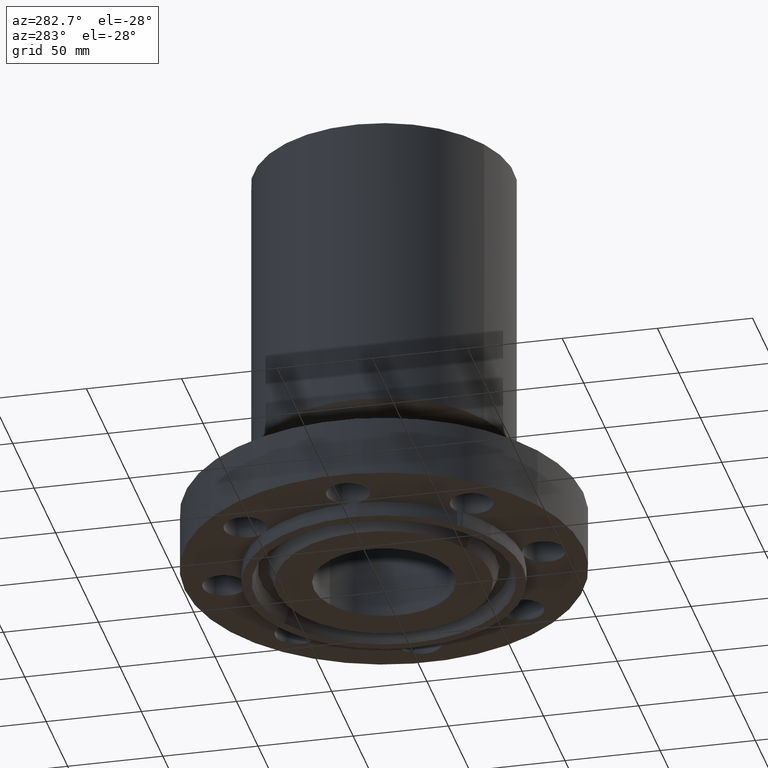
[diagram: clean part render]
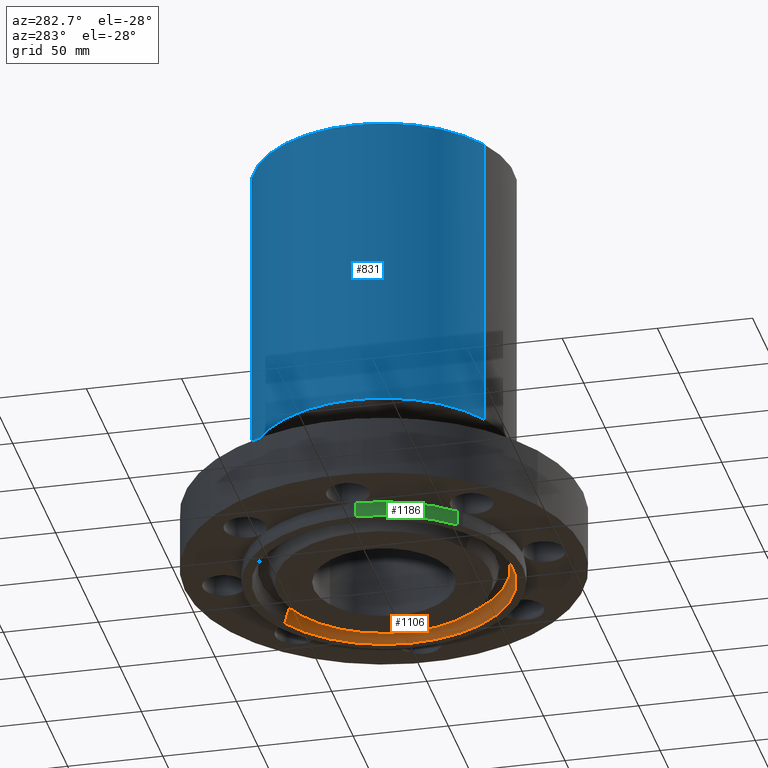
[diagram: same view with three faces highlighted in distinct colors, each labeled with its STEP entity id]
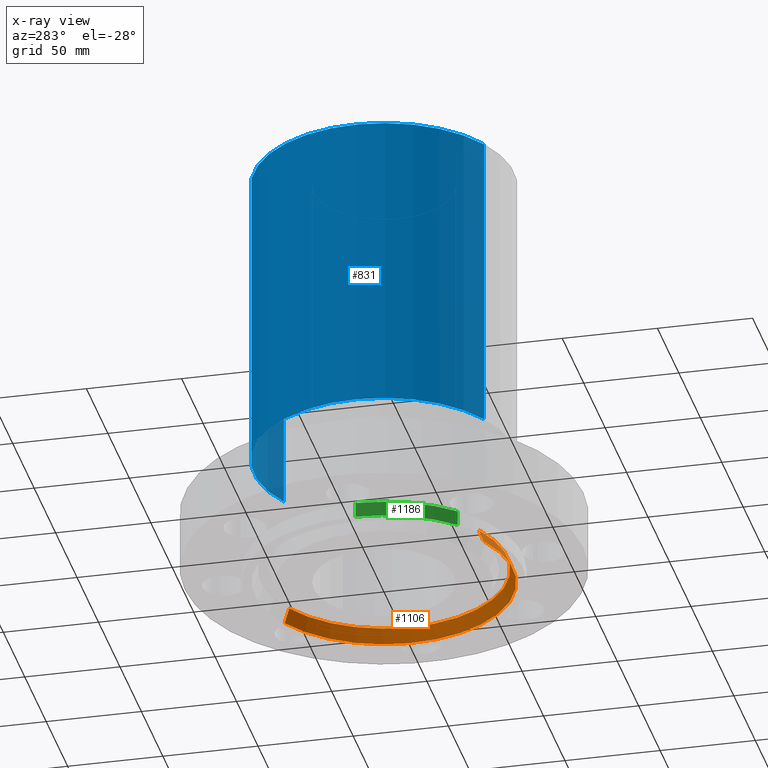
[diagram: x-ray of the same camera — body ghosted, the three highlighted faces saturated]
A machine part, auxiliary view with three faces highlighted in distinct colors.
The next image is the same camera in x-ray (body ghosted, the three faces saturated) — at least one of them is partly hidden behind the body in this view.
Their STEP definitions:

[orange] entity #1106 — the highlighted conical surface has half-angle 23 deg.
#586=AXIS2_PLACEMENT_3D('Circle Axis2P3D',#584,#585,$) ;
#1068=AXIS2_PLACEMENT_3D('Circle Axis2P3D',#1066,#1067,$) ;
#1081=AXIS2_PLACEMENT_3D('Cone Axis2P3D',#1078,#1079,#1080) ;
#584=CARTESIAN_POINT('Axis2P3D Location',(0.,0.,-0.313000000001)) ;
#588=CARTESIAN_POINT('Vertex',(1.28102503916,2.34490060538,-0.313000000001)) ;
#590=CARTESIAN_POINT('Vertex',(-1.28102503916,-2.34490060538,-0.313000000001)) ;
#1044=CARTESIAN_POINT('Vertex',(-1.22117191556,-2.23534019754,-0.0188873350169)) ;
#1051=CARTESIAN_POINT('Vertex',(1.22117191556,2.23534019754,-0.0188873350169)) ;
#1066=CARTESIAN_POINT('Axis2P3D Location',(0.,0.,-0.0188873350169)) ;
#1078=CARTESIAN_POINT('Axis2P3D Location',(0.,0.,-0.0188873350169)) ;
#1083=CARTESIAN_POINT('Line Origine',(-1.25109847736,-2.29012040146,-0.165943667509)) ;
#1088=CARTESIAN_POINT('Line Origine',(1.25109847736,2.29012040146,-0.165943667509)) ;
#585=DIRECTION('Axis2P3D Direction',(0.,0.,-0.0393700787402)) ;
#1067=DIRECTION('Axis2P3D Direction',(0.,0.,-0.0393700787402)) ;
#1079=DIRECTION('Axis2P3D Direction',(0.,0.,-0.0393700787402)) ;
#1080=DIRECTION('Axis2P3D XDirection',(0.0188750212049,0.0345504945626,0.)) ;
#1084=DIRECTION('Vector Direction',(-0.00737505833565,-0.0134999537303,-0.0362403485611)) ;
#1089=DIRECTION('Vector Direction',(0.00737505833565,0.0134999537303,-0.0362403485611)) ;
#1085=VECTOR('Line Direction',#1084,0.0393700787402) ;
#1090=VECTOR('Line Direction',#1089,0.0393700787402) ;
#1101=ORIENTED_EDGE('',*,*,#1070,.F.) ;
#1102=ORIENTED_EDGE('',*,*,#1092,.T.) ;
#1103=ORIENTED_EDGE('',*,*,#592,.T.) ;
#1104=ORIENTED_EDGE('',*,*,#1087,.F.) ;
#1106=ADVANCED_FACE('PartBody',(#1105),#1082,.F.) ;
#587=CIRCLE('generated circle',#586,2.67200000001) ;
#1069=CIRCLE('generated circle',#1068,2.5471565806) ;
#1082=CONICAL_SURFACE('Cone',#1081,2.5471565806,0.401425727959) ;
#592=EDGE_CURVE('',#589,#591,#587,.T.) ;
#1070=EDGE_CURVE('',#1052,#1045,#1069,.T.) ;
#1087=EDGE_CURVE('',#1045,#591,#1086,.T.) ;
#1092=EDGE_CURVE('',#1052,#589,#1091,.T.) ;
#1100=EDGE_LOOP('',(#1101,#1102,#1103,#1104)) ;
#1105=FACE_OUTER_BOUND('',#1100,.T.) ;
#1086=LINE('Line',#1083,#1085) ;
#1091=LINE('Line',#1088,#1090) ;
#589=VERTEX_POINT('',#588) ;
#591=VERTEX_POINT('',#590) ;
#1045=VERTEX_POINT('',#1044) ;
#1052=VERTEX_POINT('',#1051) ;

[blue] entity #831 — the highlighted cylindrical surface (partial cylindrical patch) has radius 68.326 mm, axis along (0, 0, -1).
#779=AXIS2_PLACEMENT_3D('Circle Axis2P3D',#777,#778,$) ;
#792=AXIS2_PLACEMENT_3D('Cylinder Axis2P3D',#789,#790,#791) ;
#822=AXIS2_PLACEMENT_3D('Circle Axis2P3D',#820,#821,$) ;
#755=CARTESIAN_POINT('Vertex',(1.28965469885,2.36069709149,2.4693931023)) ;
#762=CARTESIAN_POINT('Vertex',(-1.28965469885,-2.36069709149,2.4693931023)) ;
#777=CARTESIAN_POINT('Axis2P3D Location',(0.,0.,2.4693931023)) ;
#789=CARTESIAN_POINT('Axis2P3D Location',(0.,0.,4.21850000002)) ;
#794=CARTESIAN_POINT('Line Origine',(1.28965469885,2.36069709149,5.60969655117)) ;
#798=CARTESIAN_POINT('Vertex',(1.28965469885,2.36069709149,8.75000000003)) ;
#805=CARTESIAN_POINT('Vertex',(-1.28965469885,-2.36069709149,8.75000000003)) ;
#808=CARTESIAN_POINT('Line Origine',(-1.28965469885,-2.36069709149,5.60969655117)) ;
#820=CARTESIAN_POINT('Axis2P3D Location',(0.,0.,8.75000000003)) ;
#778=DIRECTION('Axis2P3D Direction',(-0.,0.,0.0393700787402)) ;
#790=DIRECTION('Axis2P3D Direction',(0.,0.,-0.0393700787402)) ;
#791=DIRECTION('Axis2P3D XDirection',(-0.0188750212049,-0.0345504945626,0.)) ;
#795=DIRECTION('Vector Direction',(0.,0.,-0.0393700787402)) ;
#809=DIRECTION('Vector Direction',(0.,0.,-0.0393700787402)) ;
#821=DIRECTION('Axis2P3D Direction',(0.,0.,-0.0393700787402)) ;
#796=VECTOR('Line Direction',#795,0.0393700787402) ;
#810=VECTOR('Line Direction',#809,0.0393700787402) ;
#826=ORIENTED_EDGE('',*,*,#781,.F.) ;
#827=ORIENTED_EDGE('',*,*,#812,.T.) ;
#828=ORIENTED_EDGE('',*,*,#824,.T.) ;
#829=ORIENTED_EDGE('',*,*,#800,.F.) ;
#831=ADVANCED_FACE('PartBody',(#830),#793,.T.) ;
#780=CIRCLE('generated circle',#779,2.69000000001) ;
#823=CIRCLE('generated circle',#822,2.69000000001) ;
#793=CYLINDRICAL_SURFACE('generated cylinder',#792,2.69000000001) ;
#781=EDGE_CURVE('',#763,#756,#780,.F.) ;
#800=EDGE_CURVE('',#756,#799,#797,.F.) ;
#812=EDGE_CURVE('',#763,#806,#811,.F.) ;
#824=EDGE_CURVE('',#806,#799,#823,.T.) ;
#825=EDGE_LOOP('',(#826,#827,#828,#829)) ;
#830=FACE_OUTER_BOUND('',#825,.T.) ;
#797=LINE('Line',#794,#796) ;
#811=LINE('Line',#808,#810) ;
#756=VERTEX_POINT('',#755) ;
#763=VERTEX_POINT('',#762) ;
#799=VERTEX_POINT('',#798) ;
#806=VERTEX_POINT('',#805) ;

[green] entity #1186 — the highlighted cylindrical surface (partial cylindrical patch) has radius 73.025 mm, axis along (0, 0, -1).
#303=AXIS2_PLACEMENT_3D('Circle Axis2P3D',#301,#302,$) ;
#486=AXIS2_PLACEMENT_3D('Circle Axis2P3D',#484,#485,$) ;
#1110=AXIS2_PLACEMENT_3D('Cylinder Axis2P3D',#1107,#1108,#1109) ;
#298=CARTESIAN_POINT('Vertex',(-2.87433912388,-0.0616409036851,3.46398325597E-016)) ;
#301=CARTESIAN_POINT('Axis2P3D Location',(0.,0.,0.)) ;
#305=CARTESIAN_POINT('Vertex',(-2.07605138692,-1.98887798493,3.46398325597E-016)) ;
#481=CARTESIAN_POINT('Vertex',(-2.07605138692,-1.98887798493,-0.313000000001)) ;
#484=CARTESIAN_POINT('Axis2P3D Location',(0.,0.,-0.313000000001)) ;
#488=CARTESIAN_POINT('Vertex',(-2.87433912388,-0.0616409036851,-0.313000000001)) ;
#1107=CARTESIAN_POINT('Axis2P3D Location',(0.,0.,4.21850000002)) ;
#1170=CARTESIAN_POINT('Line Origine',(-2.87433912388,-0.0616409036851,-0.156500000001)) ;
#1175=CARTESIAN_POINT('Line Origine',(-2.07605138692,-1.98887798493,-0.156500000001)) ;
#302=DIRECTION('Axis2P3D Direction',(0.,0.,-0.0393700787402)) ;
#485=DIRECTION('Axis2P3D Direction',(0.,0.,-0.0393700787402)) ;
#1108=DIRECTION('Axis2P3D Direction',(0.,0.,-0.0393700787402)) ;
#1109=DIRECTION('Axis2P3D XDirection',(0.0284293240248,0.0272355766508,0.)) ;
#1171=DIRECTION('Vector Direction',(0.,0.,-0.0393700787402)) ;
#1176=DIRECTION('Vector Direction',(0.,0.,-0.0393700787402)) ;
#1172=VECTOR('Line Direction',#1171,0.0393700787402) ;
#1177=VECTOR('Line Direction',#1176,0.0393700787402) ;
#1181=ORIENTED_EDGE('',*,*,#307,.T.) ;
#1182=ORIENTED_EDGE('',*,*,#1174,.T.) ;
#1183=ORIENTED_EDGE('',*,*,#490,.F.) ;
#1184=ORIENTED_EDGE('',*,*,#1179,.F.) ;
#1186=ADVANCED_FACE('PartBody',(#1185),#1111,.T.) ;
#304=CIRCLE('generated circle',#303,2.87500000001) ;
#487=CIRCLE('generated circle',#486,2.87500000001) ;
#1111=CYLINDRICAL_SURFACE('generated cylinder',#1110,2.87500000001) ;
#307=EDGE_CURVE('',#306,#299,#304,.T.) ;
#490=EDGE_CURVE('',#482,#489,#487,.T.) ;
#1174=EDGE_CURVE('',#299,#489,#1173,.T.) ;
#1179=EDGE_CURVE('',#306,#482,#1178,.T.) ;
#1180=EDGE_LOOP('',(#1181,#1182,#1183,#1184)) ;
#1185=FACE_OUTER_BOUND('',#1180,.T.) ;
#1173=LINE('Line',#1170,#1172) ;
#1178=LINE('Line',#1175,#1177) ;
#299=VERTEX_POINT('',#298) ;
#306=VERTEX_POINT('',#305) ;
#482=VERTEX_POINT('',#481) ;
#489=VERTEX_POINT('',#488) ;